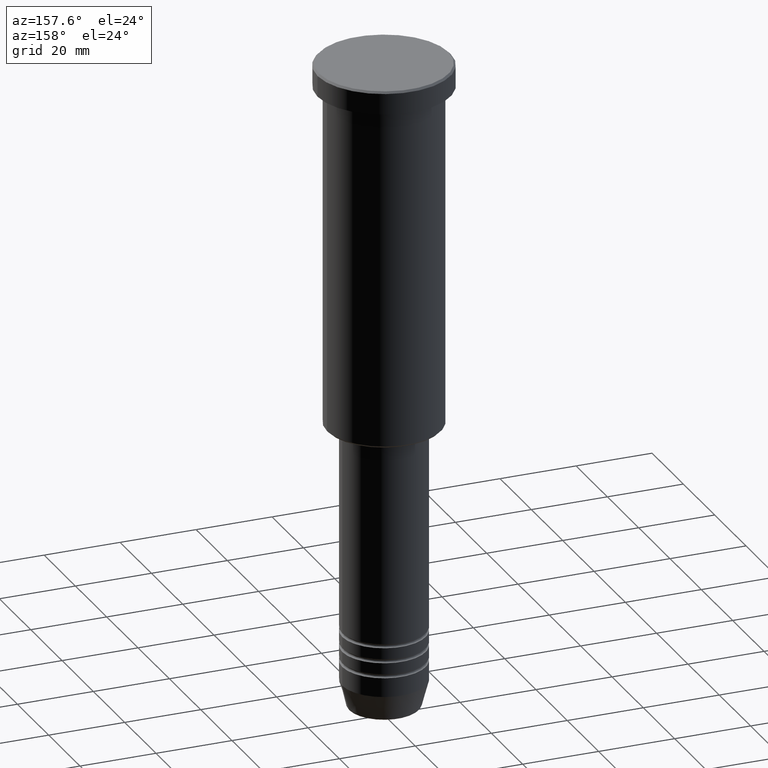
[diagram: clean part render]
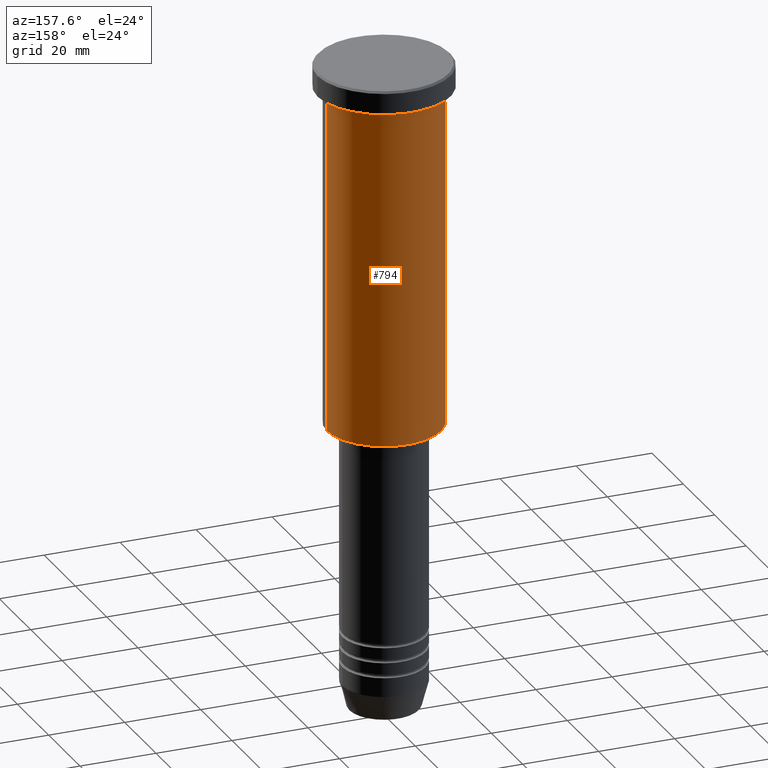
[diagram: same view with one face highlighted and labeled with its STEP entity id]
A machine part, auxiliary view. The second image highlights one B-rep face of the part: STEP entity #794.
In plain terms, the highlighted cylindrical surface (partial cylindrical patch) has radius 15 mm, axis along (-0, -0, 1).
Its self-contained STEP definition (entity closure, byte-faithful):
#69 = ORIENTED_EDGE ( 'NONE', *, *, #1167, .T. ) ;
#110 = VERTEX_POINT ( 'NONE', #1118 ) ;
#145 = EDGE_CURVE ( 'NONE', #895, #983, #1136, .T. ) ;
#247 = DIRECTION ( 'NONE',  ( 1.000000000000000000, 0.000000000000000000, 0.000000000000000000 ) ) ;
#302 = EDGE_LOOP ( 'NONE', ( #69, #740, #1073, #819 ) ) ;
#330 = CARTESIAN_POINT ( 'NONE',  ( -15.00000000000000000, 1.836970198721029589E-15, 0.000000000000000000 ) ) ;
#340 = DIRECTION ( 'NONE',  ( -0.000000000000000000, -0.000000000000000000, 1.000000000000000000 ) ) ;
#365 = VECTOR ( 'NONE', #695, 1000.000000000000000 ) ;
#429 = CARTESIAN_POINT ( 'NONE',  ( -15.00000000000000000, 1.836970198721029589E-15, -6.999999999999995559 ) ) ;
#506 = VERTEX_POINT ( 'NONE', #644 ) ;
#518 = CARTESIAN_POINT ( 'NONE',  ( 15.00000000000000000, 0.000000000000000000, 0.000000000000000000 ) ) ;
#542 = VECTOR ( 'NONE', #340, 1000.000000000000000 ) ;
#614 = DIRECTION ( 'NONE',  ( -0.000000000000000000, -0.000000000000000000, 1.000000000000000000 ) ) ;
#634 = CARTESIAN_POINT ( 'NONE',  ( 0.000000000000000000, 0.000000000000000000, 0.000000000000000000 ) ) ;
#644 = CARTESIAN_POINT ( 'NONE',  ( 15.00000000000000000, 0.000000000000000000, -95.49999999999994316 ) ) ;
#695 = DIRECTION ( 'NONE',  ( -0.000000000000000000, -0.000000000000000000, 1.000000000000000000 ) ) ;
#719 = CARTESIAN_POINT ( 'NONE',  ( 0.000000000000000000, 0.000000000000000000, -6.999999999999995559 ) ) ;
#724 = FACE_OUTER_BOUND ( 'NONE', #302, .T. ) ;
#740 = ORIENTED_EDGE ( 'NONE', *, *, #145, .T. ) ;
#748 = DIRECTION ( 'NONE',  ( 1.000000000000000000, 0.000000000000000000, 0.000000000000000000 ) ) ;
#760 = CIRCLE ( 'NONE', #1177, 15.00000000000000000 ) ;
#768 = EDGE_CURVE ( 'NONE', #110, #983, #760, .T. ) ;
#794 = ADVANCED_FACE ( 'NONE', ( #724 ), #1075, .T. ) ;
#808 = DIRECTION ( 'NONE',  ( -1.000000000000000000, 0.000000000000000000, 0.000000000000000000 ) ) ;
#819 = ORIENTED_EDGE ( 'NONE', *, *, #1037, .F. ) ;
#845 = LINE ( 'NONE', #518, #542 ) ;
#894 = DIRECTION ( 'NONE',  ( -0.000000000000000000, -0.000000000000000000, 1.000000000000000000 ) ) ;
#895 = VERTEX_POINT ( 'NONE', #919 ) ;
#919 = CARTESIAN_POINT ( 'NONE',  ( -15.00000000000000000, 1.836970198721029589E-15, -95.49999999999994316 ) ) ;
#983 = VERTEX_POINT ( 'NONE', #429 ) ;
#987 = CARTESIAN_POINT ( 'NONE',  ( 0.000000000000000000, 0.000000000000000000, -95.49999999999994316 ) ) ;
#991 = DIRECTION ( 'NONE',  ( -0.000000000000000000, -0.000000000000000000, 1.000000000000000000 ) ) ;
#994 = AXIS2_PLACEMENT_3D ( 'NONE', #987, #894, #808 ) ;
#1037 = EDGE_CURVE ( 'NONE', #506, #110, #845, .T. ) ;
#1073 = ORIENTED_EDGE ( 'NONE', *, *, #768, .F. ) ;
#1075 = CYLINDRICAL_SURFACE ( 'NONE', #1081, 15.00000000000000000 ) ;
#1081 = AXIS2_PLACEMENT_3D ( 'NONE', #634, #991, #748 ) ;
#1102 = CIRCLE ( 'NONE', #994, 15.00000000000000000 ) ;
#1118 = CARTESIAN_POINT ( 'NONE',  ( 15.00000000000000000, 0.000000000000000000, -6.999999999999995559 ) ) ;
#1136 = LINE ( 'NONE', #330, #365 ) ;
#1167 = EDGE_CURVE ( 'NONE', #506, #895, #1102, .T. ) ;
#1177 = AXIS2_PLACEMENT_3D ( 'NONE', #719, #614, #247 ) ;